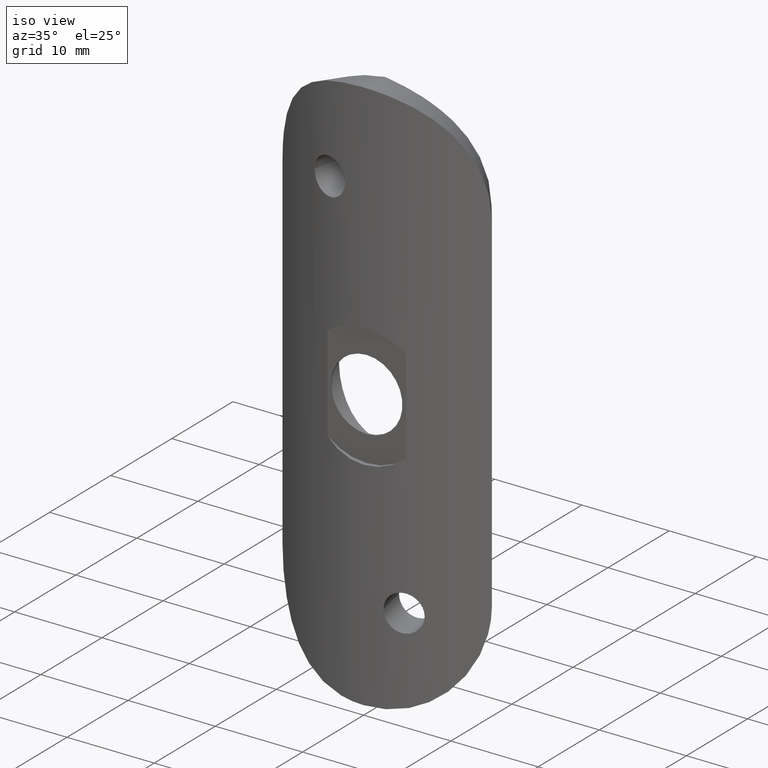
[diagram: clean part render]
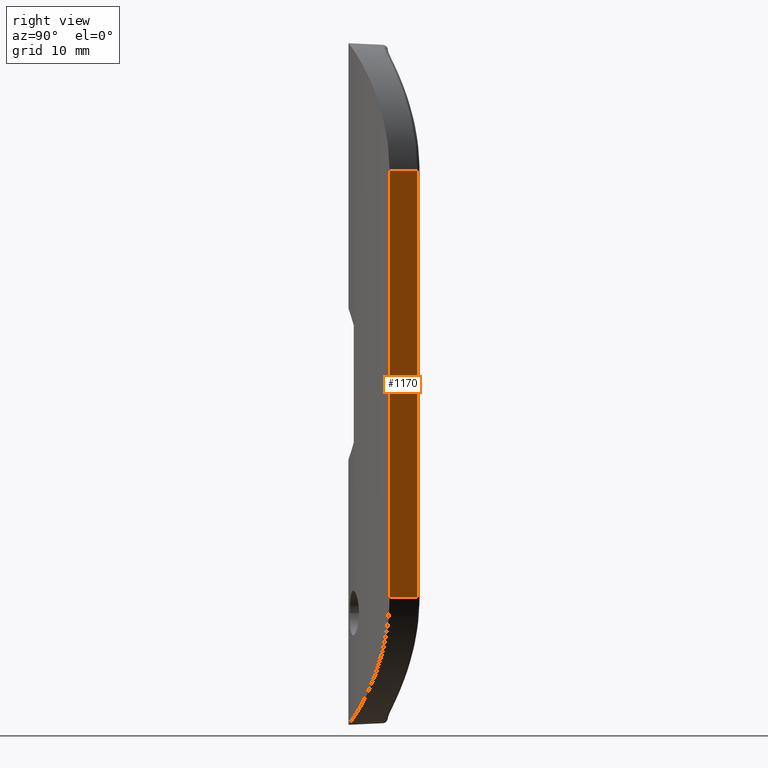
[diagram: tour spotlight — one face highlighted and labeled with its STEP entity id]
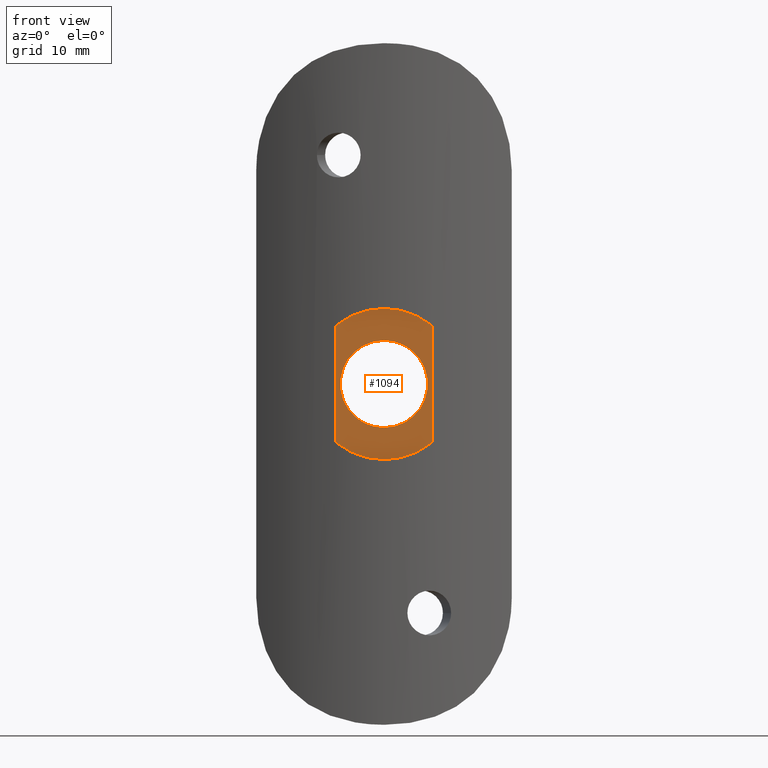
[diagram: tour spotlight — one face highlighted and labeled with its STEP entity id]
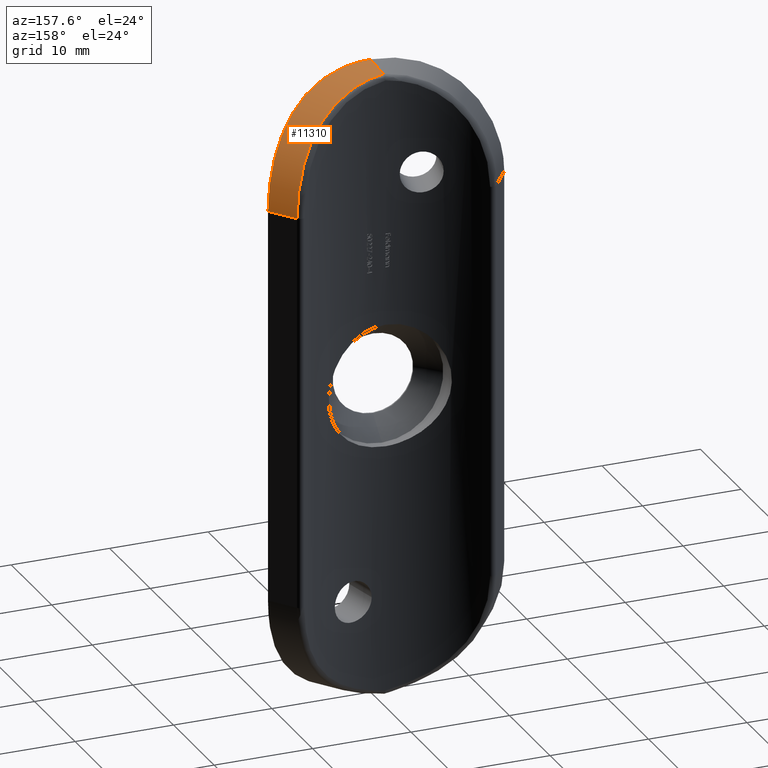
[diagram: tour spotlight — one face highlighted and labeled with its STEP entity id]
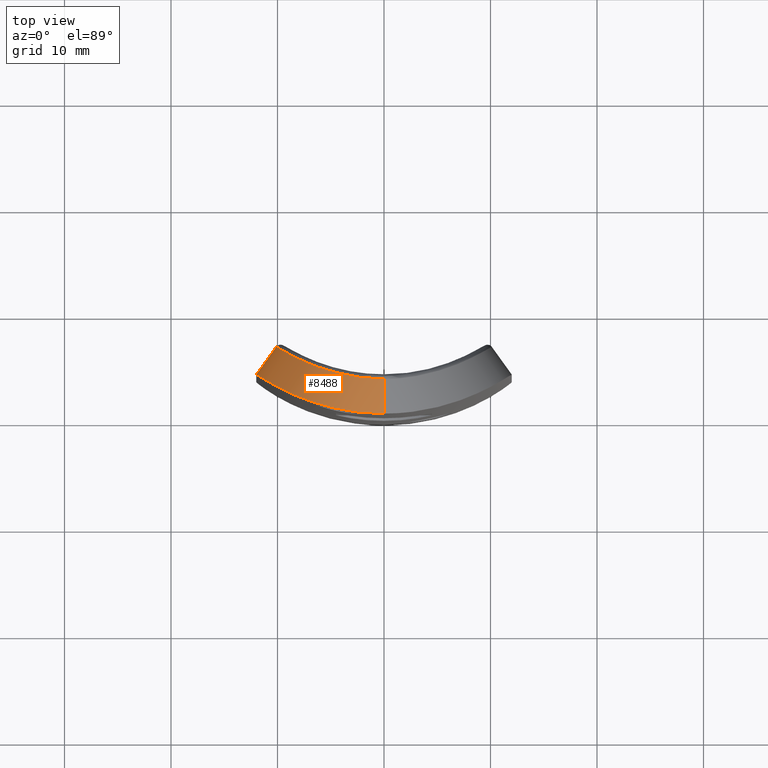
[diagram: tour spotlight — one face highlighted and labeled with its STEP entity id]
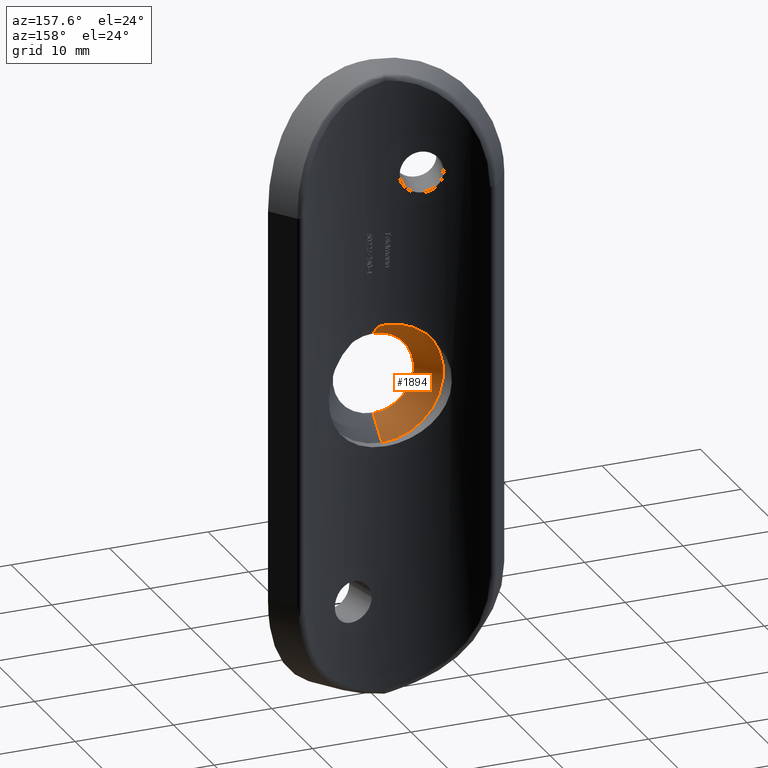
[diagram: tour spotlight — one face highlighted and labeled with its STEP entity id]
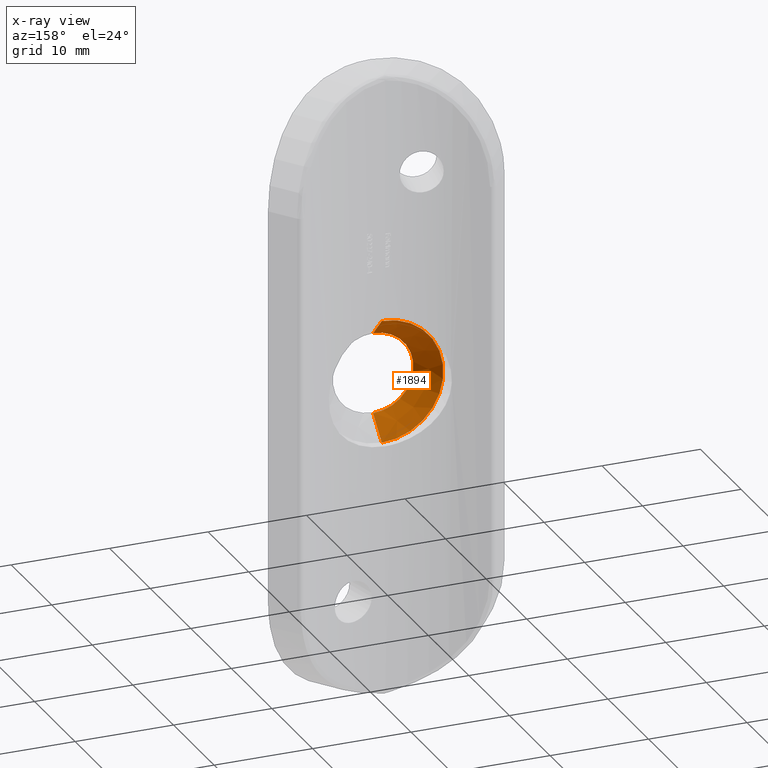
[diagram: x-ray of the same camera — body ghosted, this tour face saturated]
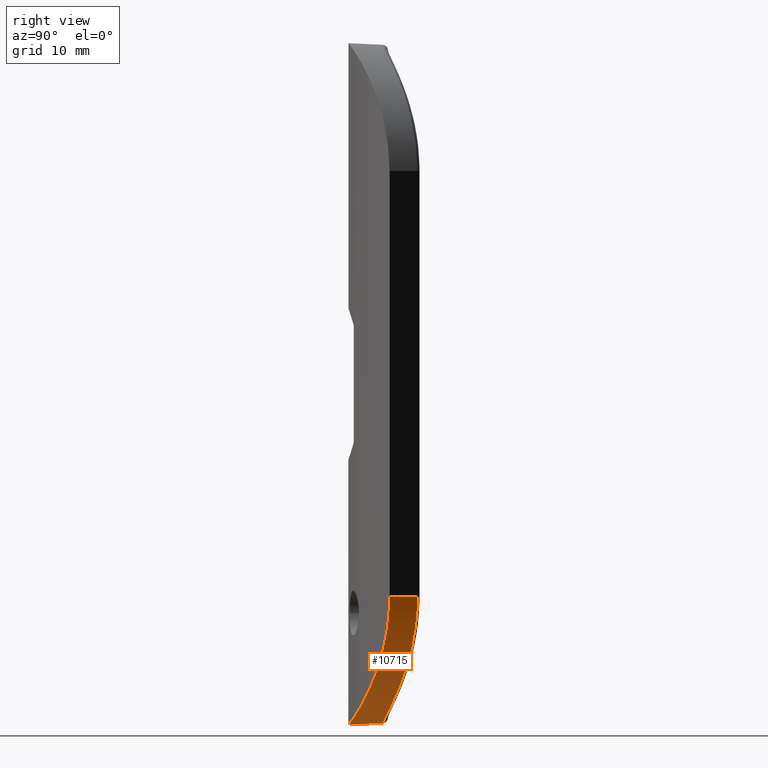
[diagram: tour spotlight — one face highlighted and labeled with its STEP entity id]
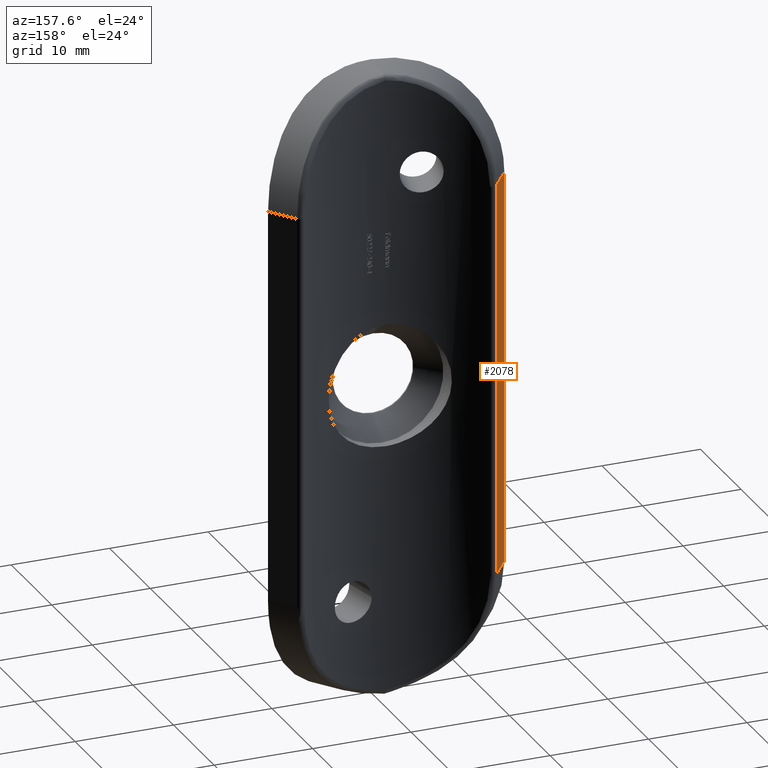
[diagram: tour spotlight — one face highlighted and labeled with its STEP entity id]
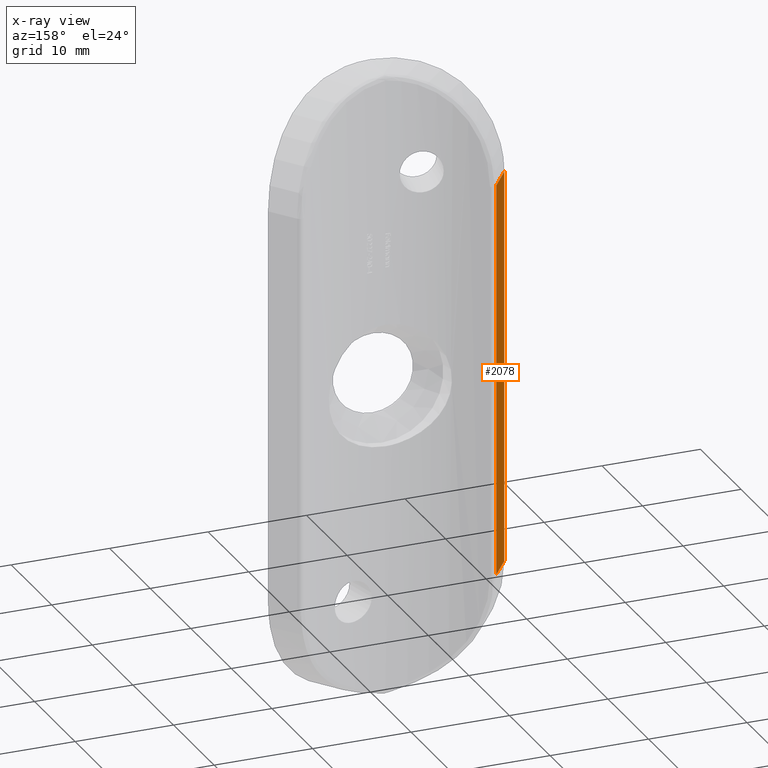
[diagram: x-ray of the same camera — body ghosted, this tour face saturated]
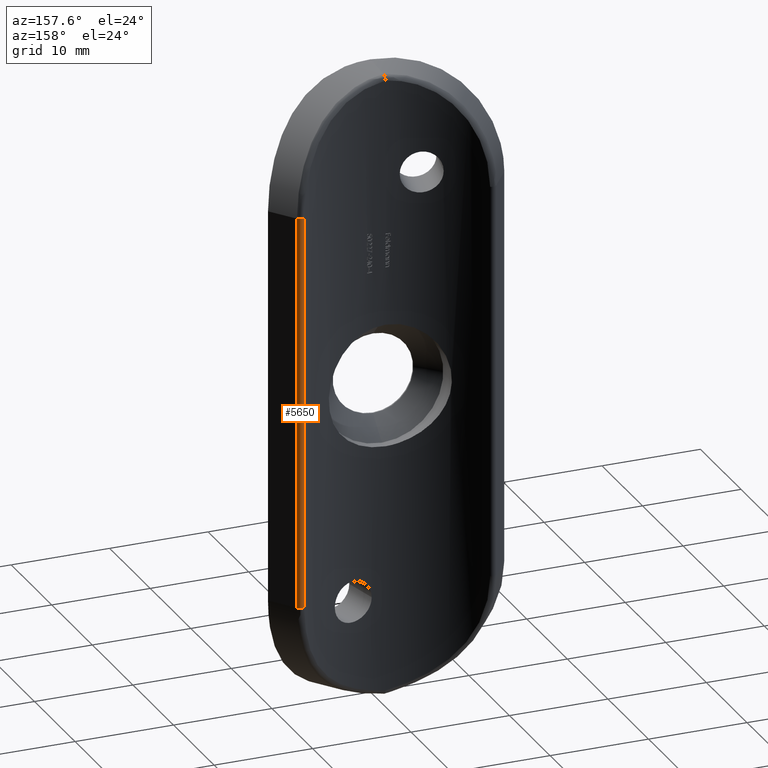
[diagram: tour spotlight — one face highlighted and labeled with its STEP entity id]
A machine part: a face-by-face anatomy tour. The part has 264 B-rep faces; the first image is the clean iso view, then the 8 largest visible faces are spotlighted one at a time (largest first), each with its STEP entity span.

Face 1 — right view, entity #1170. In plain terms, the highlighted planar face has unit normal (-0.8118, -0.5839, 0).
Definition (entity closure, byte-faithful):
#206 = VERTEX_POINT ( 'NONE', #2045 ) ;
#216 = CARTESIAN_POINT ( 'NONE',  ( 10.12717891536658854, 6.471195106964714228, 20.00000000000000000 ) ) ;
#436 = EDGE_CURVE ( 'NONE', #206, #4526, #10312, .T. ) ;
#1146 = ORIENTED_EDGE ( 'NONE', *, *, #6328, .T. ) ;
#1170 = ADVANCED_FACE ( 'NONE', ( #6364 ), #8756, .F. ) ;
#1869 = DIRECTION ( 'NONE',  ( -0.000000000000000000, -0.000000000000000000, -1.000000000000000000 ) ) ;
#2045 = CARTESIAN_POINT ( 'NONE',  ( 12.00000000000000000, 3.867599093655613718, 20.00000000000000000 ) ) ;
#3160 = VECTOR ( 'NONE', #11535, 1000.000000000000114 ) ;
#3526 = CARTESIAN_POINT ( 'NONE',  ( 9.839416058394155229, 6.871243052462144618, -20.00000000000000355 ) ) ;
#3542 = CARTESIAN_POINT ( 'NONE',  ( 10.12717891536659209, 6.471195106964712451, -20.00000000000000355 ) ) ;
#3570 = VECTOR ( 'NONE', #1869, 1000.000000000000000 ) ;
#3602 = EDGE_LOOP ( 'NONE', ( #1146, #5489, #6016, #10317 ) ) ;
#3622 = VECTOR ( 'NONE', #9531, 1000.000000000000114 ) ;
#3942 = LINE ( 'NONE', #4525, #3622 ) ;
#4525 = CARTESIAN_POINT ( 'NONE',  ( 11.99999999999999822, 3.867599093655615938, 20.00000000000000000 ) ) ;
#4526 = VERTEX_POINT ( 'NONE', #7653 ) ;
#5489 = ORIENTED_EDGE ( 'NONE', *, *, #8319, .T. ) ;
#6016 = ORIENTED_EDGE ( 'NONE', *, *, #9095, .T. ) ;
#6328 = EDGE_CURVE ( 'NONE', #4526, #11741, #9766, .T. ) ;
#6364 = FACE_OUTER_BOUND ( 'NONE', #3602, .T. ) ;
#6790 = DIRECTION ( 'NONE',  ( -0.8117956645423052287, -0.5839416058394171216, 0.000000000000000000 ) ) ;
#6877 = CARTESIAN_POINT ( 'NONE',  ( 12.00000000000000000, 3.867599093655613718, 32.00000000000000000 ) ) ;
#7653 = CARTESIAN_POINT ( 'NONE',  ( 12.00000000000000000, 3.867599093655613718, -20.00000000000000355 ) ) ;
#7666 = AXIS2_PLACEMENT_3D ( 'NONE', #8806, #6790, #8671 ) ;
#7739 = CARTESIAN_POINT ( 'NONE',  ( 10.12717891536659209, 6.471195106964712451, 32.00000000000000000 ) ) ;
#8167 = LINE ( 'NONE', #7739, #10688 ) ;
#8319 = EDGE_CURVE ( 'NONE', #11741, #9322, #8167, .T. ) ;
#8671 = DIRECTION ( 'NONE',  ( 0.5839416058394171216, -0.8117956645423052287, 0.000000000000000000 ) ) ;
#8756 = PLANE ( 'NONE',  #7666 ) ;
#8806 = CARTESIAN_POINT ( 'NONE',  ( 9.839416058394155229, 6.871243052462144618, 32.00000000000000000 ) ) ;
#9095 = EDGE_CURVE ( 'NONE', #9322, #206, #3942, .T. ) ;
#9322 = VERTEX_POINT ( 'NONE', #216 ) ;
#9531 = DIRECTION ( 'NONE',  ( 0.5839416058394170106, -0.8117956645423052287, -0.000000000000000000 ) ) ;
#9766 = LINE ( 'NONE', #3526, #3160 ) ;
#9776 = DIRECTION ( 'NONE',  ( -0.000000000000000000, -0.000000000000000000, 1.000000000000000000 ) ) ;
#10312 = LINE ( 'NONE', #6877, #3570 ) ;
#10317 = ORIENTED_EDGE ( 'NONE', *, *, #436, .T. ) ;
#10688 = VECTOR ( 'NONE', #9776, 1000.000000000000000 ) ;
#11535 = DIRECTION ( 'NONE',  ( -0.5839416058394170106, 0.8117956645423052287, 0.000000000000000000 ) ) ;
#11741 = VERTEX_POINT ( 'NONE', #3542 ) ;

Face 2 — front view, entity #1094. In plain terms, the highlighted planar face has unit normal (0, 1, 0).
Definition (entity closure, byte-faithful):
#55 = VERTEX_POINT ( 'NONE', #4670 ) ;
#395 = ORIENTED_EDGE ( 'NONE', *, *, #2696, .T. ) ;
#484 = CIRCLE ( 'NONE', #4409, 7.099999999999997868 ) ;
#645 = DIRECTION ( 'NONE',  ( 0.000000000000000000, 1.000000000000000000, 0.000000000000000000 ) ) ;
#1094 = ADVANCED_FACE ( 'NONE', ( #9837, #10913 ), #1567, .F. ) ;
#1444 = DIRECTION ( 'NONE',  ( 0.000000000000000000, -0.000000000000000000, 1.000000000000000000 ) ) ;
#1476 = EDGE_CURVE ( 'NONE', #11277, #55, #2429, .T. ) ;
#1559 = ORIENTED_EDGE ( 'NONE', *, *, #1476, .F. ) ;
#1567 = PLANE ( 'NONE',  #2289 ) ;
#1840 = DIRECTION ( 'NONE',  ( 0.000000000000000000, 0.000000000000000000, -1.000000000000000000 ) ) ;
#2289 = AXIS2_PLACEMENT_3D ( 'NONE', #12582, #645, #1444 ) ;
#2308 = DIRECTION ( 'NONE',  ( 0.000000000000000000, 0.000000000000000000, -1.000000000000000000 ) ) ;
#2354 = LINE ( 'NONE', #5694, #10054 ) ;
#2429 = LINE ( 'NONE', #6985, #3224 ) ;
#2554 = AXIS2_PLACEMENT_3D ( 'NONE', #11927, #4837, #1840 ) ;
#2623 = ORIENTED_EDGE ( 'NONE', *, *, #10505, .F. ) ;
#2696 = EDGE_CURVE ( 'NONE', #4862, #55, #3532, .T. ) ;
#2796 = VERTEX_POINT ( 'NONE', #10721 ) ;
#2890 = AXIS2_PLACEMENT_3D ( 'NONE', #3806, #11813, #5812 ) ;
#3224 = VECTOR ( 'NONE', #7919, 1000.000000000000000 ) ;
#3236 = CARTESIAN_POINT ( 'NONE',  ( 0.000000000000000000, 0.5000000000000004441, -7.099999999999997868 ) ) ;
#3532 = CIRCLE ( 'NONE', #2890, 7.099999999999997868 ) ;
#3806 = CARTESIAN_POINT ( 'NONE',  ( 0.000000000000000000, 0.5000000000000004441, 0.000000000000000000 ) ) ;
#3899 = CARTESIAN_POINT ( 'NONE',  ( -4.505552130427524560, 0.5000000000000004441, 5.487257967327575869 ) ) ;
#4213 = EDGE_CURVE ( 'NONE', #11277, #7183, #8679, .T. ) ;
#4409 = AXIS2_PLACEMENT_3D ( 'NONE', #8500, #6319, #2308 ) ;
#4507 = EDGE_LOOP ( 'NONE', ( #10905, #5325, #8429, #395, #1559 ) ) ;
#4670 = CARTESIAN_POINT ( 'NONE',  ( 4.505552130427524560, 0.5000000000000004441, -5.487257967327575869 ) ) ;
#4837 = DIRECTION ( 'NONE',  ( -0.000000000000000000, -1.000000000000000000, -0.000000000000000000 ) ) ;
#4862 = VERTEX_POINT ( 'NONE', #3236 ) ;
#4921 = CARTESIAN_POINT ( 'NONE',  ( 4.505552130427524560, 0.5000000000000004441, 5.487257967327575869 ) ) ;
#5058 = VERTEX_POINT ( 'NONE', #12654 ) ;
#5325 = ORIENTED_EDGE ( 'NONE', *, *, #12447, .F. ) ;
#5694 = CARTESIAN_POINT ( 'NONE',  ( -4.505552130427524560, 0.5000000000000004441, 32.00000000000000000 ) ) ;
#5812 = DIRECTION ( 'NONE',  ( 0.000000000000000000, 0.000000000000000000, -1.000000000000000000 ) ) ;
#6319 = DIRECTION ( 'NONE',  ( -0.000000000000000000, -1.000000000000000000, -0.000000000000000000 ) ) ;
#6880 = CARTESIAN_POINT ( 'NONE',  ( 0.000000000000000000, 0.5000000000000004441, 0.000000000000000000 ) ) ;
#6985 = CARTESIAN_POINT ( 'NONE',  ( 4.505552130427524560, 0.5000000000000004441, 32.00000000000000000 ) ) ;
#7183 = VERTEX_POINT ( 'NONE', #3899 ) ;
#7712 = CARTESIAN_POINT ( 'NONE',  ( 5.021051876504147385E-16, 0.5000000000000004441, 4.099999999999999645 ) ) ;
#7919 = DIRECTION ( 'NONE',  ( -0.000000000000000000, -0.000000000000000000, -1.000000000000000000 ) ) ;
#8015 = ORIENTED_EDGE ( 'NONE', *, *, #9863, .F. ) ;
#8162 = AXIS2_PLACEMENT_3D ( 'NONE', #6880, #11833, #9742 ) ;
#8247 = AXIS2_PLACEMENT_3D ( 'NONE', #10241, #8269, #9273 ) ;
#8269 = DIRECTION ( 'NONE',  ( -0.000000000000000000, -1.000000000000000000, -0.000000000000000000 ) ) ;
#8429 = ORIENTED_EDGE ( 'NONE', *, *, #12349, .T. ) ;
#8500 = CARTESIAN_POINT ( 'NONE',  ( 0.000000000000000000, 0.5000000000000004441, 0.000000000000000000 ) ) ;
#8679 = CIRCLE ( 'NONE', #2554, 7.099999999999997868 ) ;
#8910 = EDGE_LOOP ( 'NONE', ( #2623, #8015 ) ) ;
#9165 = VERTEX_POINT ( 'NONE', #7712 ) ;
#9273 = DIRECTION ( 'NONE',  ( 0.000000000000000000, 0.000000000000000000, -1.000000000000000000 ) ) ;
#9742 = DIRECTION ( 'NONE',  ( 0.000000000000000000, 0.000000000000000000, -1.000000000000000000 ) ) ;
#9837 = FACE_BOUND ( 'NONE', #8910, .T. ) ;
#9863 = EDGE_CURVE ( 'NONE', #9165, #2796, #10667, .T. ) ;
#10054 = VECTOR ( 'NONE', #12579, 1000.000000000000000 ) ;
#10241 = CARTESIAN_POINT ( 'NONE',  ( 0.000000000000000000, 0.5000000000000004441, 0.000000000000000000 ) ) ;
#10505 = EDGE_CURVE ( 'NONE', #2796, #9165, #11796, .T. ) ;
#10667 = CIRCLE ( 'NONE', #8247, 4.099999999999999645 ) ;
#10721 = CARTESIAN_POINT ( 'NONE',  ( 0.000000000000000000, 0.5000000000000004441, -4.099999999999999645 ) ) ;
#10905 = ORIENTED_EDGE ( 'NONE', *, *, #4213, .T. ) ;
#10913 = FACE_OUTER_BOUND ( 'NONE', #4507, .T. ) ;
#11277 = VERTEX_POINT ( 'NONE', #4921 ) ;
#11796 = CIRCLE ( 'NONE', #8162, 4.099999999999999645 ) ;
#11813 = DIRECTION ( 'NONE',  ( -0.000000000000000000, -1.000000000000000000, -0.000000000000000000 ) ) ;
#11833 = DIRECTION ( 'NONE',  ( -0.000000000000000000, -1.000000000000000000, -0.000000000000000000 ) ) ;
#11927 = CARTESIAN_POINT ( 'NONE',  ( 0.000000000000000000, 0.5000000000000004441, 0.000000000000000000 ) ) ;
#12349 = EDGE_CURVE ( 'NONE', #5058, #4862, #484, .T. ) ;
#12447 = EDGE_CURVE ( 'NONE', #5058, #7183, #2354, .T. ) ;
#12579 = DIRECTION ( 'NONE',  ( 0.000000000000000000, 0.000000000000000000, 1.000000000000000000 ) ) ;
#12582 = CARTESIAN_POINT ( 'NONE',  ( 0.000000000000000000, 0.5000000000000000000, -4.099999999999999645 ) ) ;
#12654 = CARTESIAN_POINT ( 'NONE',  ( -4.505552130427524560, 0.5000000000000004441, -5.487257967327576758 ) ) ;

Face 3 — auxiliary view, entity #11310. In plain terms, the highlighted cylindrical surface (partial cylindrical patch) has radius 12 mm, axis along (0.5839, -0.8118, 0).
Definition (entity closure, byte-faithful):
#50 = CARTESIAN_POINT ( 'NONE',  ( 9.572176795097250945, 6.108296295516240981, 23.94905101762006083 ) ) ;
#92 = CARTESIAN_POINT ( 'NONE',  ( 9.236289791145132710, 5.900570151001626407, 24.97770794052638976 ) ) ;
#93 = CARTESIAN_POINT ( 'NONE',  ( 12.00000000000000000, 3.867599093655612830, 20.82532465503840413 ) ) ;
#136 = CARTESIAN_POINT ( 'NONE',  ( -9.741547974507684060, 13.54270072992697749, 20.00000000000000000 ) ) ;
#157 = ORIENTED_EDGE ( 'NONE', *, *, #9095, .F. ) ;
#206 = VERTEX_POINT ( 'NONE', #2045 ) ;
#216 = CARTESIAN_POINT ( 'NONE',  ( 10.12717891536658854, 6.471195106964714228, 20.00000000000000000 ) ) ;
#315 = CARTESIAN_POINT ( 'NONE',  ( 7.565155939109336813, 1.440374234520338748, 29.76760648692991396 ) ) ;
#398 = CARTESIAN_POINT ( 'NONE',  ( 5.536237308077762265, 0.7447776640479754073, 30.96738982605044299 ) ) ;
#731 = B_SPLINE_CURVE_WITH_KNOTS ( 'NONE', 3,
 ( #4179, #93, #5175, #7357, #12456, #7399, #6276, #12328, #4398, #1404, #10441, #11438, #5308, #4311, #6397, #315, #2400, #3257, #398, #8424, #11257, #8254, #5269, #8293, #11396, #2312 ),
 .UNSPECIFIED., .F., .F.,
 ( 4, 2, 2, 2, 2, 2, 2, 2, 2, 2, 2, 2, 4 ),
 ( 0.000000000000000000, 0.002441037165012326787, 0.003661555747518484977, 0.004882074330024644034, 0.007323111495036960412, 0.008543630077543121204, 0.009764148660049279393, 0.01098466724255543932, 0.01220518582506159404, 0.01464622299007390174, 0.01586674157258005646, 0.01708726015508621118, 0.01952829732009852409 ),
 .UNSPECIFIED. ) ;
#1025 = EDGE_CURVE ( 'NONE', #206, #8933, #731, .T. ) ;
#1045 = CARTESIAN_POINT ( 'NONE',  ( 6.998838513618312440, 4.749969719537173063, 28.54597954356985667 ) ) ;
#1089 = CARTESIAN_POINT ( 'NONE',  ( 8.276384315391476676, 5.363297702628000430, 26.86292557208184917 ) ) ;
#1184 = CARTESIAN_POINT ( 'NONE',  ( 9.670500822432888555, 6.170714829862242290, 23.59779996299899452 ) ) ;
#1226 = DIRECTION ( 'NONE',  ( 0.5839416058394170106, -0.8117956645423051176, 0.000000000000000000 ) ) ;
#1404 = CARTESIAN_POINT ( 'NONE',  ( 9.955326618855732335, 2.570852261898295410, 27.23425730716095572 ) ) ;
#1531 = VERTEX_POINT ( 'NONE', #3983 ) ;
#2045 = CARTESIAN_POINT ( 'NONE',  ( 12.00000000000000000, 3.867599093655613718, 20.00000000000000000 ) ) ;
#2093 = CARTESIAN_POINT ( 'NONE',  ( 7.670246256790045791, 5.059910319933140777, 27.73525308564031988 ) ) ;
#2312 = CARTESIAN_POINT ( 'NONE',  ( -9.117266696107152617E-15, 0.000000000000000000, 32.00000000000000000 ) ) ;
#2400 = CARTESIAN_POINT ( 'NONE',  ( 7.245185304457206321, 1.316302063506890718, 29.99670429303103347 ) ) ;
#3112 = CARTESIAN_POINT ( 'NONE',  ( 4.786837390412624238, 3.962737914211535539, 30.28040607774899229 ) ) ;
#3207 = DIRECTION ( 'NONE',  ( 0.8117956645423051176, 0.5839416058394172326, 0.000000000000000000 ) ) ;
#3257 = CARTESIAN_POINT ( 'NONE',  ( 6.244935086374507449, 0.9590666021320810586, 30.62764866027265143 ) ) ;
#3622 = VECTOR ( 'NONE', #9531, 1000.000000000000114 ) ;
#3730 = EDGE_LOOP ( 'NONE', ( #157, #7316, #9481, #4621 ) ) ;
#3929 = CARTESIAN_POINT ( 'NONE',  ( -6.838016446903935200E-15, 2.172125592317102338, 31.94967150208802309 ) ) ;
#3942 = LINE ( 'NONE', #4525, #3622 ) ;
#3983 = CARTESIAN_POINT ( 'NONE',  ( -7.645952399552847496E-15, 3.246240496244443108, 31.84933095981319795 ) ) ;
#4086 = CARTESIAN_POINT ( 'NONE',  ( 5.389221191223329654, 4.147455033844807737, 29.89592279680632814 ) ) ;
#4128 = CARTESIAN_POINT ( 'NONE',  ( 5.677826046268694249, 4.244325353752462782, 29.68976629026787606 ) ) ;
#4179 = CARTESIAN_POINT ( 'NONE',  ( 12.00000000000000000, 3.867599093655613718, 20.00000000000000000 ) ) ;
#4222 = CARTESIAN_POINT ( 'NONE',  ( 10.07148329003814524, 6.433007344359092272, 21.46472306259698470 ) ) ;
#4311 = CARTESIAN_POINT ( 'NONE',  ( 8.454984399070681889, 1.817544348643117536, 29.01973767204460231 ) ) ;
#4393 = AXIS2_PLACEMENT_3D ( 'NONE', #136, #1226, #3207 ) ;
#4398 = CARTESIAN_POINT ( 'NONE',  ( 10.57120301057235956, 2.921180050394565075, 26.23181291921781622 ) ) ;
#4432 = CYLINDRICAL_SURFACE ( 'NONE', #4393, 12.00000000000000178 ) ;
#4525 = CARTESIAN_POINT ( 'NONE',  ( 11.99999999999999822, 3.867599093655615938, 20.00000000000000000 ) ) ;
#4621 = ORIENTED_EDGE ( 'NONE', *, *, #1025, .F. ) ;
#5040 = CARTESIAN_POINT ( 'NONE',  ( 8.457785709454658019, 5.459738984517018778, 26.56093233363199957 ) ) ;
#5173 = CARTESIAN_POINT ( 'NONE',  ( 10.12717891536658854, 6.471195106964714228, 20.00000000000000000 ) ) ;
#5175 = CARTESIAN_POINT ( 'NONE',  ( 11.93189946652243449, 3.818008342000464683, 21.63634898292986719 ) ) ;
#5269 = CARTESIAN_POINT ( 'NONE',  ( 2.839675941182904673, 0.1931468925307959772, 31.75932234247533259 ) ) ;
#5308 = CARTESIAN_POINT ( 'NONE',  ( 8.995662457020596747, 2.071100874837505934, 28.46802102427642112 ) ) ;
#5538 = B_SPLINE_CURVE_WITH_KNOTS ( 'NONE', 3,
 ( #5173, #9068, #4222, #6092, #12180, #1184, #50, #92, #7090, #5040, #1089, #8207, #2093, #1045, #11219, #4128, #4086, #3112, #12047, #12226, #9121, #9253, #10140, #6052, #7046, #11124 ),
 .UNSPECIFIED., .F., .F.,
 ( 4, 2, 2, 2, 2, 2, 2, 2, 2, 2, 2, 2, 4 ),
 ( 0.000000000000000000, 0.002183140656762440953, 0.003274710985143656442, 0.004366281313524871498, 0.006549421970287312884, 0.007640992298668537915, 0.008732562627049762077, 0.01091570328381222255, 0.01200727361219344758, 0.01309884394057467261, 0.01528198459733712787, 0.01637355492571835464, 0.01746512525409957967 ),
 .UNSPECIFIED. ) ;
#6052 = CARTESIAN_POINT ( 'NONE',  ( 0.7289297493280589846, 3.269291098129510686, 31.74079200779239684 ) ) ;
#6092 = CARTESIAN_POINT ( 'NONE',  ( 9.906032413744748411, 6.323334164646677635, 22.53821986203080741 ) ) ;
#6276 = CARTESIAN_POINT ( 'NONE',  ( 11.31885359670267910, 3.397375670358060873, 24.39806094091035860 ) ) ;
#6397 = CARTESIAN_POINT ( 'NONE',  ( 8.169198336596604548, 1.690689837189890632, 29.27964985723644276 ) ) ;
#7046 = CARTESIAN_POINT ( 'NONE',  ( 0.3660558530732861415, 3.252240755034904840, 31.80123139863307813 ) ) ;
#7090 = CARTESIAN_POINT ( 'NONE',  ( 8.959022801026884864, 5.735262522138841135, 25.63046673744610615 ) ) ;
#7233 = CARTESIAN_POINT ( 'NONE',  ( -9.117266696107152617E-15, 0.000000000000000000, 32.00000000000000000 ) ) ;
#7316 = ORIENTED_EDGE ( 'NONE', *, *, #11348, .T. ) ;
#7357 = CARTESIAN_POINT ( 'NONE',  ( 11.72907469377582679, 3.675814856459924673, 22.83227826673835636 ) ) ;
#7399 = CARTESIAN_POINT ( 'NONE',  ( 11.43944363209317139, 3.477888637730434773, 24.01070385012516439 ) ) ;
#8207 = CARTESIAN_POINT ( 'NONE',  ( 7.882756202702052128, 5.163412005056858156, 27.45012701642542297 ) ) ;
#8254 = CARTESIAN_POINT ( 'NONE',  ( 3.237124911212127198, 0.2526143562426108602, 31.68063621403025110 ) ) ;
#8293 = CARTESIAN_POINT ( 'NONE',  ( 1.638044330538452442, 0.04950677834220664625, 31.94437176565915948 ) ) ;
#8424 = CARTESIAN_POINT ( 'NONE',  ( 4.411722216362562676, 0.4754446895425761266, 31.36894475695905982 ) ) ;
#8933 = VERTEX_POINT ( 'NONE', #7233 ) ;
#8957 = CARTESIAN_POINT ( 'NONE',  ( -7.645952399552847496E-15, 3.246240496244443108, 31.84933095981319795 ) ) ;
#8966 =( BOUNDED_CURVE ( )  B_SPLINE_CURVE ( 3, ( #9639, #11757, #3929, #8957 ),
 .UNSPECIFIED., .F., .F. ) 
 B_SPLINE_CURVE_WITH_KNOTS ( ( 4, 4 ),
 ( 4.712388980384689674, 4.871021361493728108 ),
 .UNSPECIFIED. ) 
 CURVE ( )  GEOMETRIC_REPRESENTATION_ITEM ( )  RATIONAL_B_SPLINE_CURVE ( ( 1.000000000000000000, 0.9979040797806755236, 0.9979040797806755236, 1.000000000000000000 ) ) 
 REPRESENTATION_ITEM ( '' )  );
#9068 = CARTESIAN_POINT ( 'NONE',  ( 10.12717891536658854, 6.471195106964714228, 20.73807937200532336 ) ) ;
#9095 = EDGE_CURVE ( 'NONE', #9322, #206, #3942, .T. ) ;
#9121 = CARTESIAN_POINT ( 'NONE',  ( 2.855553897046666734, 3.505190841350648956, 31.19724926842518542 ) ) ;
#9253 = CARTESIAN_POINT ( 'NONE',  ( 1.805319957109083884, 3.362487134309513515, 31.50432257375954137 ) ) ;
#9322 = VERTEX_POINT ( 'NONE', #216 ) ;
#9481 = ORIENTED_EDGE ( 'NONE', *, *, #12005, .F. ) ;
#9531 = DIRECTION ( 'NONE',  ( 0.5839416058394170106, -0.8117956645423052287, -0.000000000000000000 ) ) ;
#9639 = CARTESIAN_POINT ( 'NONE',  ( -9.117266696107152617E-15, 0.000000000000000000, 32.00000000000000000 ) ) ;
#10140 = CARTESIAN_POINT ( 'NONE',  ( 1.447866623082514570, 3.324309759526063335, 31.59255130478875984 ) ) ;
#10441 = CARTESIAN_POINT ( 'NONE',  ( 9.730212641888689618, 2.447553399588561440, 27.55987949649086488 ) ) ;
#10694 = FACE_OUTER_BOUND ( 'NONE', #3730, .T. ) ;
#11124 = CARTESIAN_POINT ( 'NONE',  ( -7.645952399552847496E-15, 3.246240496244443108, 31.84933095981319795 ) ) ;
#11219 = CARTESIAN_POINT ( 'NONE',  ( 6.501984363770556108, 4.541767708968576400, 29.03411875496052730 ) ) ;
#11257 = CARTESIAN_POINT ( 'NONE',  ( 4.025376523089078340, 0.3941277660935256777, 31.48497128318694749 ) ) ;
#11310 = ADVANCED_FACE ( 'NONE', ( #10694 ), #4432, .T. ) ;
#11348 = EDGE_CURVE ( 'NONE', #9322, #1531, #5538, .T. ) ;
#11396 = CARTESIAN_POINT ( 'NONE',  ( 0.8246185387076750972, -2.320870275476768138E-16, 31.99999999999999289 ) ) ;
#11438 = CARTESIAN_POINT ( 'NONE',  ( 9.250554041662466531, 2.197810460345600791, 28.17621965723953181 ) ) ;
#11757 = CARTESIAN_POINT ( 'NONE',  ( -6.022379613298613912E-15, 1.087772709770875812, 32.00000000000000000 ) ) ;
#12005 = EDGE_CURVE ( 'NONE', #8933, #1531, #8966, .T. ) ;
#12047 = CARTESIAN_POINT ( 'NONE',  ( 4.477211699115454024, 3.876148234274339632, 30.45618376487040990 ) ) ;
#12180 = CARTESIAN_POINT ( 'NONE',  ( 9.837107706626525783, 6.278035596462827606, 22.89328904128677422 ) ) ;
#12226 = CARTESIAN_POINT ( 'NONE',  ( 3.523794955830233722, 3.637066460458416195, 30.93751904557932519 ) ) ;
#12328 = CARTESIAN_POINT ( 'NONE',  ( 10.90936914002777769, 3.131790059932551440, 25.52261610347974496 ) ) ;
#12456 = CARTESIAN_POINT ( 'NONE',  ( 11.64450510354858359, 3.617092456668828504, 23.22745913984867627 ) ) ;

Face 4 — top view, entity #8488. In plain terms, the highlighted cylindrical surface (partial cylindrical patch) has radius 12 mm, axis along (0.5839, 0.8118, -0).
Definition (entity closure, byte-faithful):
#17 = CARTESIAN_POINT ( 'NONE',  ( -10.12717891536658854, 6.471195106964713339, 20.73807937200530915 ) ) ;
#360 = CARTESIAN_POINT ( 'NONE',  ( -11.64480806118127632, 3.617302323465929170, 23.22607689744122439 ) ) ;
#377 = CARTESIAN_POINT ( 'NONE',  ( -6.998838513618322210, 4.749969719537173951, 28.54597954356985312 ) ) ;
#402 = CARTESIAN_POINT ( 'NONE',  ( -4.019515070331801887, 0.3929784181706611479, 31.48658961672468592 ) ) ;
#441 = CARTESIAN_POINT ( 'NONE',  ( -7.556449153321901591, 1.436897327260850732, 29.77418816922519795 ) ) ;
#529 = EDGE_CURVE ( 'NONE', #6330, #2103, #12506, .T. ) ;
#556 = B_SPLINE_CURVE_WITH_KNOTS ( 'NONE', 3,
 ( #5312, #4446, #5361, #3434, #11446, #402, #10444, #5441, #10409, #10316, #441, #3351, #8470, #10481, #4486, #12371, #5485, #6401, #7492, #9307, #6329, #360, #2447, #7362, #1366, #4404 ),
 .UNSPECIFIED., .F., .F.,
 ( 4, 2, 2, 2, 2, 2, 2, 2, 2, 2, 2, 2, 4 ),
 ( 1.143113421885059593E-17, 0.002442704272823939624, 0.003664056409235903582, 0.004885408545647868840, 0.007328112818471794153, 0.008549464954883760279, 0.009770817091295727272, 0.01099216922770769427, 0.01221352136411965952, 0.01465622563694359871, 0.01587757777335556744, 0.01709892990976753444, 0.01954163418259147189 ),
 .UNSPECIFIED. ) ;
#638 = CYLINDRICAL_SURFACE ( 'NONE', #5624, 12.00000000000000178 ) ;
#1017 = DIRECTION ( 'NONE',  ( -0.8117956645423061168, 0.5839416058394159004, 0.000000000000000000 ) ) ;
#1345 = CARTESIAN_POINT ( 'NONE',  ( -3.523794955830248377, 3.637066460458415751, 30.93751904557931098 ) ) ;
#1366 = CARTESIAN_POINT ( 'NONE',  ( -12.00000000000000000, 3.867599093655615050, 20.82542637679248543 ) ) ;
#1503 = CARTESIAN_POINT ( 'NONE',  ( -4.477211699115466459, 3.876148234274339188, 30.45618376487040990 ) ) ;
#1531 = VERTEX_POINT ( 'NONE', #3983 ) ;
#2103 = VERTEX_POINT ( 'NONE', #2750 ) ;
#2143 = CARTESIAN_POINT ( 'NONE',  ( -10.12717891536659387, 6.471195106964717780, 20.00000000000000000 ) ) ;
#2335 = CARTESIAN_POINT ( 'NONE',  ( -7.670246256790055561, 5.059910319933142553, 27.73525308564032343 ) ) ;
#2447 = CARTESIAN_POINT ( 'NONE',  ( -11.72926870889600615, 3.675950132417820981, 22.83126104549899793 ) ) ;
#2462 = CARTESIAN_POINT ( 'NONE',  ( -7.645952399552847496E-15, 3.246240496244443108, 31.84933095981319795 ) ) ;
#2504 = FACE_OUTER_BOUND ( 'NONE', #8838, .T. ) ;
#2750 = CARTESIAN_POINT ( 'NONE',  ( -10.12717891536659387, 6.471195106964717780, 20.00000000000000000 ) ) ;
#3123 = EDGE_CURVE ( 'NONE', #1531, #2103, #5776, .T. ) ;
#3351 = CARTESIAN_POINT ( 'NONE',  ( -8.164066724082507776, 1.688435056704962411, 29.28423691125915340 ) ) ;
#3370 = CARTESIAN_POINT ( 'NONE',  ( -8.276384315391480229, 5.363297702628003982, 26.86292557208185627 ) ) ;
#3434 = CARTESIAN_POINT ( 'NONE',  ( -2.836642390231776112, 0.1927378290949691986, 31.75985753279653068 ) ) ;
#3451 = CARTESIAN_POINT ( 'NONE',  ( -0.3660558530732994087, 3.252240755034910169, 31.80123139863308523 ) ) ;
#3540 = CARTESIAN_POINT ( 'NONE',  ( -6.501984363770561437, 4.541767708968579953, 29.03411875496051664 ) ) ;
#3929 = CARTESIAN_POINT ( 'NONE',  ( -6.838016446903935200E-15, 2.172125592317102338, 31.94967150208802309 ) ) ;
#3936 = CARTESIAN_POINT ( 'NONE',  ( 9.741547974507668073, 13.54270072992701479, 20.00000000000000000 ) ) ;
#3983 = CARTESIAN_POINT ( 'NONE',  ( -7.645952399552847496E-15, 3.246240496244443108, 31.84933095981319795 ) ) ;
#4404 = CARTESIAN_POINT ( 'NONE',  ( -12.00000000000000000, 3.867599093655613718, 20.00000000000000000 ) ) ;
#4446 = CARTESIAN_POINT ( 'NONE',  ( -0.8244347916045254854, 6.324512672832084957E-17, 32.00000000000000000 ) ) ;
#4486 = CARTESIAN_POINT ( 'NONE',  ( -9.248077892315398785, 2.196565208356638266, 28.17913971635068293 ) ) ;
#4640 = VECTOR ( 'NONE', #5071, 1000.000000000000114 ) ;
#4848 = CARTESIAN_POINT ( 'NONE',  ( -9.906032413744753740, 6.323334164646680300, 22.53821986203081451 ) ) ;
#5071 = DIRECTION ( 'NONE',  ( 0.5839416058394157893, 0.8117956645423061168, -0.000000000000000000 ) ) ;
#5155 = CARTESIAN_POINT ( 'NONE',  ( -9.839416058394160558, 6.871243052462147283, 20.00000000000000000 ) ) ;
#5312 = CARTESIAN_POINT ( 'NONE',  ( -9.117266696107152617E-15, 0.000000000000000000, 32.00000000000000000 ) ) ;
#5361 = CARTESIAN_POINT ( 'NONE',  ( -1.637081255389283729, 0.04948494443770538875, 31.94438342167033795 ) ) ;
#5377 = CARTESIAN_POINT ( 'NONE',  ( -8.457785709454670453, 5.459738984517022331, 26.56093233363199957 ) ) ;
#5441 = CARTESIAN_POINT ( 'NONE',  ( -5.532917837906419223, 0.7438366506647378085, 30.96886078951179400 ) ) ;
#5485 = CARTESIAN_POINT ( 'NONE',  ( -9.952719643953839679, 2.569399929939177873, 27.23823856945869437 ) ) ;
#5502 = CARTESIAN_POINT ( 'NONE',  ( -5.389221191223335872, 4.147455033844809513, 29.89592279680631393 ) ) ;
#5624 = AXIS2_PLACEMENT_3D ( 'NONE', #3936, #8917, #1017 ) ;
#5776 = B_SPLINE_CURVE_WITH_KNOTS ( 'NONE', 3,
 ( #2462, #3451, #11465, #12437, #6463, #11543, #1345, #1503, #8371, #5502, #9550, #3540, #377, #2335, #9369, #3370, #5377, #12388, #6381, #7381, #10888, #9972, #4848, #6862, #17, #2143 ),
 .UNSPECIFIED., .F., .F.,
 ( 4, 2, 2, 2, 2, 2, 2, 2, 2, 2, 2, 2, 4 ),
 ( 6.720386226758006326E-19, 0.001104099780465673088, 0.002208199560931345742, 0.004416399121862693219, 0.005520498902328365223, 0.006624598682794038094, 0.008832798243725374296, 0.009936898024191037626, 0.01104099780465670443, 0.01324919736558804496, 0.01435329714605371176, 0.01545739692651938203, 0.01766559648745071043 ),
 .UNSPECIFIED. ) ;
#5913 = ORIENTED_EDGE ( 'NONE', *, *, #12005, .T. ) ;
#6329 = CARTESIAN_POINT ( 'NONE',  ( -11.44009522695896663, 3.478326778409639441, 24.00843907464543037 ) ) ;
#6330 = VERTEX_POINT ( 'NONE', #12549 ) ;
#6381 = CARTESIAN_POINT ( 'NONE',  ( -9.236289791145132710, 5.900570151001625518, 24.97770794052638621 ) ) ;
#6401 = CARTESIAN_POINT ( 'NONE',  ( -10.57043074677839911, 2.920680030414520179, 26.23359019163507710 ) ) ;
#6463 = CARTESIAN_POINT ( 'NONE',  ( -1.805319957109100315, 3.362487134309515735, 31.50432257375955558 ) ) ;
#6862 = CARTESIAN_POINT ( 'NONE',  ( -10.07148329003814879, 6.433007344359095825, 21.46472306259698826 ) ) ;
#7233 = CARTESIAN_POINT ( 'NONE',  ( -9.117266696107152617E-15, 0.000000000000000000, 32.00000000000000000 ) ) ;
#7362 = CARTESIAN_POINT ( 'NONE',  ( -11.93188330489361881, 3.817998496445515588, 21.63619040237307800 ) ) ;
#7381 = CARTESIAN_POINT ( 'NONE',  ( -9.572176795097250945, 6.108296295516241869, 23.94905101762004662 ) ) ;
#7492 = CARTESIAN_POINT ( 'NONE',  ( -10.90931707614188007, 3.131748158434784379, 25.52295538976313694 ) ) ;
#8371 = CARTESIAN_POINT ( 'NONE',  ( -4.786837390412633120, 3.962737914211539092, 30.28040607774899229 ) ) ;
#8470 = CARTESIAN_POINT ( 'NONE',  ( -8.450991300507093129, 1.815731251027911330, 29.02354936809624064 ) ) ;
#8488 = ADVANCED_FACE ( 'NONE', ( #2504 ), #638, .T. ) ;
#8838 = EDGE_LOOP ( 'NONE', ( #5913, #9205, #11792, #12039 ) ) ;
#8917 = DIRECTION ( 'NONE',  ( 0.5839416058394157893, 0.8117956645423062279, -0.000000000000000000 ) ) ;
#8933 = VERTEX_POINT ( 'NONE', #7233 ) ;
#8957 = CARTESIAN_POINT ( 'NONE',  ( -7.645952399552847496E-15, 3.246240496244443108, 31.84933095981319795 ) ) ;
#8966 =( BOUNDED_CURVE ( )  B_SPLINE_CURVE ( 3, ( #9639, #11757, #3929, #8957 ),
 .UNSPECIFIED., .F., .F. ) 
 B_SPLINE_CURVE_WITH_KNOTS ( ( 4, 4 ),
 ( 4.712388980384689674, 4.871021361493728108 ),
 .UNSPECIFIED. ) 
 CURVE ( )  GEOMETRIC_REPRESENTATION_ITEM ( )  RATIONAL_B_SPLINE_CURVE ( ( 1.000000000000000000, 0.9979040797806755236, 0.9979040797806755236, 1.000000000000000000 ) ) 
 REPRESENTATION_ITEM ( '' )  );
#9002 = EDGE_CURVE ( 'NONE', #8933, #6330, #556, .T. ) ;
#9205 = ORIENTED_EDGE ( 'NONE', *, *, #3123, .T. ) ;
#9307 = CARTESIAN_POINT ( 'NONE',  ( -11.31942153671303153, 3.397748102794351244, 24.39640287687041820 ) ) ;
#9369 = CARTESIAN_POINT ( 'NONE',  ( -7.882756202702059234, 5.163412005056864373, 27.45012701642542652 ) ) ;
#9550 = CARTESIAN_POINT ( 'NONE',  ( -5.677826046268700466, 4.244325353752465446, 29.68976629026786185 ) ) ;
#9639 = CARTESIAN_POINT ( 'NONE',  ( -9.117266696107152617E-15, 0.000000000000000000, 32.00000000000000000 ) ) ;
#9972 = CARTESIAN_POINT ( 'NONE',  ( -9.837107706626531112, 6.278035596462832046, 22.89328904128677777 ) ) ;
#10316 = CARTESIAN_POINT ( 'NONE',  ( -7.234194564605611610, 1.312203026654633620, 30.00411977800343166 ) ) ;
#10409 = CARTESIAN_POINT ( 'NONE',  ( -6.239551306538208664, 0.9574985507725577438, 30.63005912226489968 ) ) ;
#10444 = CARTESIAN_POINT ( 'NONE',  ( -4.407850644025233855, 0.4745909305598469130, 31.37018340299277241 ) ) ;
#10481 = CARTESIAN_POINT ( 'NONE',  ( -8.992997745725388015, 2.069792450696422925, 28.47099985454205751 ) ) ;
#10888 = CARTESIAN_POINT ( 'NONE',  ( -9.670500822432897436, 6.170714829862249395, 23.59779996299899096 ) ) ;
#11446 = CARTESIAN_POINT ( 'NONE',  ( -3.233250671116532526, 0.2520170817718268008, 31.68143250167894465 ) ) ;
#11465 = CARTESIAN_POINT ( 'NONE',  ( -0.7289297493280783025, 3.269291098129507578, 31.74079200779240395 ) ) ;
#11543 = CARTESIAN_POINT ( 'NONE',  ( -2.855553897046683165, 3.505190841350652953, 31.19724926842519608 ) ) ;
#11757 = CARTESIAN_POINT ( 'NONE',  ( -6.022379613298613912E-15, 1.087772709770875812, 32.00000000000000000 ) ) ;
#11792 = ORIENTED_EDGE ( 'NONE', *, *, #529, .F. ) ;
#12005 = EDGE_CURVE ( 'NONE', #8933, #1531, #8966, .T. ) ;
#12039 = ORIENTED_EDGE ( 'NONE', *, *, #9002, .F. ) ;
#12371 = CARTESIAN_POINT ( 'NONE',  ( -9.727451992068004927, 2.446072495299532523, 27.56368564966890489 ) ) ;
#12388 = CARTESIAN_POINT ( 'NONE',  ( -8.959022801026891969, 5.735262522138842911, 25.63046673744609194 ) ) ;
#12437 = CARTESIAN_POINT ( 'NONE',  ( -1.447866623082533888, 3.324309759526062003, 31.59255130478876694 ) ) ;
#12506 = LINE ( 'NONE', #5155, #4640 ) ;
#12549 = CARTESIAN_POINT ( 'NONE',  ( -12.00000000000000000, 3.867599093655613718, 20.00000000000000000 ) ) ;

Face 5 — auxiliary view, entity #1894. An x-ray twin of the same camera follows (body ghosted, this face saturated) — the face is partly hidden behind the body. In plain terms, the highlighted conical surface has half-angle 45 deg.
Definition (entity closure, byte-faithful):
#1307 = AXIS2_PLACEMENT_3D ( 'NONE', #12813, #2899, #12942 ) ;
#1492 = VERTEX_POINT ( 'NONE', #11056 ) ;
#1894 = ADVANCED_FACE ( 'NONE', ( #11054 ), #2734, .F. ) ;
#1988 = EDGE_CURVE ( 'NONE', #11609, #11619, #2413, .T. ) ;
#2191 = CIRCLE ( 'NONE', #3447, 6.250000000000001776 ) ;
#2242 = DIRECTION ( 'NONE',  ( 0.000000000000000000, 0.000000000000000000, -1.000000000000000000 ) ) ;
#2346 = CIRCLE ( 'NONE', #12087, 4.099999999999999645 ) ;
#2413 = LINE ( 'NONE', #8255, #10596 ) ;
#2734 = CONICAL_SURFACE ( 'NONE', #1307, 4.099999999999999645, 0.7853981633974426169 ) ;
#2899 = DIRECTION ( 'NONE',  ( 0.000000000000000000, 1.000000000000000000, 0.000000000000000000 ) ) ;
#3152 = DIRECTION ( 'NONE',  ( 0.000000000000000000, 0.000000000000000000, -1.000000000000000000 ) ) ;
#3447 = AXIS2_PLACEMENT_3D ( 'NONE', #12152, #5146, #2242 ) ;
#4244 = ORIENTED_EDGE ( 'NONE', *, *, #1988, .F. ) ;
#4537 = EDGE_CURVE ( 'NONE', #1492, #11137, #8209, .T. ) ;
#4778 = CARTESIAN_POINT ( 'NONE',  ( 5.021051876504147385E-16, 0.6499999999999734879, -4.099999999999999645 ) ) ;
#5146 = DIRECTION ( 'NONE',  ( -0.000000000000000000, -1.000000000000000000, -0.000000000000000000 ) ) ;
#6277 = DIRECTION ( 'NONE',  ( 0.000000000000000000, 0.7071067811865515695, 0.7071067811865435759 ) ) ;
#6358 = ORIENTED_EDGE ( 'NONE', *, *, #8525, .F. ) ;
#6797 = VECTOR ( 'NONE', #7609, 999.9999999999998863 ) ;
#7609 = DIRECTION ( 'NONE',  ( 8.659560562354884787E-17, 0.7071067811865515695, -0.7071067811865435759 ) ) ;
#7618 = CARTESIAN_POINT ( 'NONE',  ( 7.654042494670960565E-16, 2.800000000000000266, 6.250000000000002665 ) ) ;
#8209 = LINE ( 'NONE', #4778, #6797 ) ;
#8255 = CARTESIAN_POINT ( 'NONE',  ( 0.000000000000000000, 0.6499999999999734879, 4.099999999999999645 ) ) ;
#8525 = EDGE_CURVE ( 'NONE', #11619, #11137, #2191, .T. ) ;
#8681 = EDGE_LOOP ( 'NONE', ( #12221, #9643, #6358, #4244 ) ) ;
#9256 = EDGE_CURVE ( 'NONE', #11609, #1492, #2346, .T. ) ;
#9294 = DIRECTION ( 'NONE',  ( -0.000000000000000000, -1.000000000000000000, -0.000000000000000000 ) ) ;
#9643 = ORIENTED_EDGE ( 'NONE', *, *, #4537, .T. ) ;
#10596 = VECTOR ( 'NONE', #6277, 999.9999999999998863 ) ;
#11054 = FACE_OUTER_BOUND ( 'NONE', #8681, .T. ) ;
#11056 = CARTESIAN_POINT ( 'NONE',  ( 6.337547185587552989E-16, 0.6499999999999734879, -4.099999999999999645 ) ) ;
#11137 = VERTEX_POINT ( 'NONE', #12551 ) ;
#11609 = VERTEX_POINT ( 'NONE', #12803 ) ;
#11619 = VERTEX_POINT ( 'NONE', #7618 ) ;
#12087 = AXIS2_PLACEMENT_3D ( 'NONE', #12172, #9294, #3152 ) ;
#12152 = CARTESIAN_POINT ( 'NONE',  ( 0.000000000000000000, 2.800000000000000266, 0.000000000000000000 ) ) ;
#12172 = CARTESIAN_POINT ( 'NONE',  ( 0.000000000000000000, 0.6499999999999734879, 0.000000000000000000 ) ) ;
#12221 = ORIENTED_EDGE ( 'NONE', *, *, #9256, .T. ) ;
#12551 = CARTESIAN_POINT ( 'NONE',  ( 0.000000000000000000, 2.800000000000000266, -6.250000000000001776 ) ) ;
#12803 = CARTESIAN_POINT ( 'NONE',  ( 0.000000000000000000, 0.6499999999999734879, 4.099999999999999645 ) ) ;
#12813 = CARTESIAN_POINT ( 'NONE',  ( 0.000000000000000000, 0.6499999999999734879, 0.000000000000000000 ) ) ;
#12942 = DIRECTION ( 'NONE',  ( 0.000000000000000000, 0.000000000000000000, 1.000000000000000000 ) ) ;

Face 6 — right view, entity #10715. In plain terms, the highlighted cylindrical surface (partial cylindrical patch) has radius 12 mm, axis along (-0.5839, 0.8118, 0).
Definition (entity closure, byte-faithful):
#423 = VERTEX_POINT ( 'NONE', #8974 ) ;
#819 = B_SPLINE_CURVE_WITH_KNOTS ( 'NONE', 3,
 ( #10314, #11729, #11778, #10942, #7120, #1121, #3331, #2299, #9593, #5683, #5727, #1361, #6652, #1164, #12655, #9213, #4223, #3113, #3023, #4129, #12048, #12142, #5132, #10180, #11077, #7225 ),
 .UNSPECIFIED., .F., .F.,
 ( 4, 2, 2, 2, 2, 2, 2, 2, 2, 2, 2, 2, 4 ),
 ( 7.499305273336299745E-18, 0.002442704272823938323, 0.003664056409235903582, 0.004885408545647870575, 0.007328112818471798490, 0.008549464954883763748, 0.009770817091295729007, 0.01099216922770769427, 0.01221352136411965952, 0.01465622563694360045, 0.01587757777335557438, 0.01709892990976754484, 0.01954163418259148924 ),
 .UNSPECIFIED. ) ;
#876 = EDGE_CURVE ( 'NONE', #423, #4526, #819, .T. ) ;
#957 = CARTESIAN_POINT ( 'NONE',  ( -4.927110117898232846E-15, 2.172125592317101006, -31.94967150208802309 ) ) ;
#970 = CARTESIAN_POINT ( 'NONE',  ( 8.457785709454661571, 5.459738984517020555, -26.56093233363199602 ) ) ;
#1008 = AXIS2_PLACEMENT_3D ( 'NONE', #12396, #2512, #5465 ) ;
#1010 = CARTESIAN_POINT ( 'NONE',  ( 3.523794955830239495, 3.637066460458414863, -30.93751904557932519 ) ) ;
#1121 = CARTESIAN_POINT ( 'NONE',  ( 4.019515070331798334, 0.3929784181706627577, -31.48658961672468592 ) ) ;
#1164 = CARTESIAN_POINT ( 'NONE',  ( 8.992997745725388015, 2.069792450696423813, -28.47099985454206816 ) ) ;
#1361 = CARTESIAN_POINT ( 'NONE',  ( 8.164066724082505999, 1.688435056704962856, -29.28423691125916761 ) ) ;
#1395 = ORIENTED_EDGE ( 'NONE', *, *, #2928, .T. ) ;
#1825 = ORIENTED_EDGE ( 'NONE', *, *, #6328, .F. ) ;
#1965 = CARTESIAN_POINT ( 'NONE',  ( 9.236289791145127381, 5.900570151001625518, -24.97770794052639332 ) ) ;
#2299 = CARTESIAN_POINT ( 'NONE',  ( 5.532917837906416558, 0.7438366506647351439, -30.96886078951178689 ) ) ;
#2416 = ORIENTED_EDGE ( 'NONE', *, *, #8872, .T. ) ;
#2512 = DIRECTION ( 'NONE',  ( -0.5839416058394170106, 0.8117956645423051176, 0.000000000000000000 ) ) ;
#2902 = CARTESIAN_POINT ( 'NONE',  ( -5.735046070547146720E-15, 3.246240496244441776, -31.84933095981319795 ) ) ;
#2928 = EDGE_CURVE ( 'NONE', #423, #3609, #11688, .T. ) ;
#2983 = CARTESIAN_POINT ( 'NONE',  ( 9.837107706626525783, 6.278035596462830270, -22.89328904128677422 ) ) ;
#3023 = CARTESIAN_POINT ( 'NONE',  ( 10.90931707614188007, 3.131748158434783935, -25.52295538976314049 ) ) ;
#3030 = CARTESIAN_POINT ( 'NONE',  ( 8.276384315391476676, 5.363297702628000430, -26.86292557208184917 ) ) ;
#3113 = CARTESIAN_POINT ( 'NONE',  ( 10.57043074677839201, 2.920680030414521955, -26.23359019163507000 ) ) ;
#3160 = VECTOR ( 'NONE', #11535, 1000.000000000000114 ) ;
#3331 = CARTESIAN_POINT ( 'NONE',  ( 4.407850644025230302, 0.4745909305598443595, -31.37018340299277241 ) ) ;
#3526 = CARTESIAN_POINT ( 'NONE',  ( 9.839416058394155229, 6.871243052462144618, -20.00000000000000355 ) ) ;
#3542 = CARTESIAN_POINT ( 'NONE',  ( 10.12717891536659209, 6.471195106964712451, -20.00000000000000355 ) ) ;
#3609 = VERTEX_POINT ( 'NONE', #8407 ) ;
#3925 = CARTESIAN_POINT ( 'NONE',  ( 9.906032413744750187, 6.323334164646680300, -22.53821986203081806 ) ) ;
#3972 = CARTESIAN_POINT ( 'NONE',  ( 5.389221191223328766, 4.147455033844804184, -29.89592279680632103 ) ) ;
#4129 = CARTESIAN_POINT ( 'NONE',  ( 11.31942153671302975, 3.397748102794349911, -24.39640287687041820 ) ) ;
#4223 = CARTESIAN_POINT ( 'NONE',  ( 9.952719643953837902, 2.569399929939180982, -27.23823856945869792 ) ) ;
#4526 = VERTEX_POINT ( 'NONE', #7653 ) ;
#4889 = CARTESIAN_POINT ( 'NONE',  ( 0.7289297493280652018, 3.269291098129509354, -31.74079200779241106 ) ) ;
#5000 = CARTESIAN_POINT ( 'NONE',  ( 10.12717891536659209, 6.471195106964712451, -20.00000000000000355 ) ) ;
#5132 = CARTESIAN_POINT ( 'NONE',  ( 11.72926870889600970, 3.675950132417822314, -22.83126104549899438 ) ) ;
#5442 = ORIENTED_EDGE ( 'NONE', *, *, #876, .F. ) ;
#5465 = DIRECTION ( 'NONE',  ( -0.8117956645423051176, -0.5839416058394170106, 0.000000000000000000 ) ) ;
#5683 = CARTESIAN_POINT ( 'NONE',  ( 7.234194564605608058, 1.312203026654633842, -30.00411977800343166 ) ) ;
#5727 = CARTESIAN_POINT ( 'NONE',  ( 7.556449153321892709, 1.436897327260850066, -29.77418816922518729 ) ) ;
#6004 = CARTESIAN_POINT ( 'NONE',  ( -5.735046070547146720E-15, 3.246240496244441776, -31.84933095981319795 ) ) ;
#6015 = CARTESIAN_POINT ( 'NONE',  ( 7.670246256790047568, 5.059910319933136336, -27.73525308564031988 ) ) ;
#6046 = CARTESIAN_POINT ( 'NONE',  ( 7.739856686759259326E-16, 0.000000000000000000, -32.00000000000000000 ) ) ;
#6057 = CARTESIAN_POINT ( 'NONE',  ( 10.07148329003814702, 6.433007344359098489, -21.46472306259700247 ) ) ;
#6328 = EDGE_CURVE ( 'NONE', #4526, #11741, #9766, .T. ) ;
#6435 = B_SPLINE_CURVE_WITH_KNOTS ( 'NONE', 3,
 ( #2902, #11006, #4889, #12008, #7053, #9033, #1010, #10884, #7004, #3972, #6971, #11891, #12907, #6015, #9928, #3030, #970, #11046, #1965, #8996, #12052, #2983, #3925, #6057, #10926, #5000 ),
 .UNSPECIFIED., .F., .F.,
 ( 4, 2, 2, 2, 2, 2, 2, 2, 2, 2, 2, 2, 4 ),
 ( 0.000000000000000000, 0.001104099780465667884, 0.002208199560931335768, 0.004416399121862674138, 0.005520498902328340937, 0.006624598682794008604, 0.008832798243725337867, 0.009936898024191008136, 0.01104099780465667840, 0.01324919736558802588, 0.01435329714605369789, 0.01545739692651936815, 0.01766559648745072431 ),
 .UNSPECIFIED. ) ;
#6652 = CARTESIAN_POINT ( 'NONE',  ( 8.450991300507091353, 1.815731251027912441, -29.02354936809624419 ) ) ;
#6971 = CARTESIAN_POINT ( 'NONE',  ( 5.677826046268693361, 4.244325353752461893, -29.68976629026787606 ) ) ;
#7004 = CARTESIAN_POINT ( 'NONE',  ( 4.786837390412626014, 3.962737914211535539, -30.28040607774899229 ) ) ;
#7053 = CARTESIAN_POINT ( 'NONE',  ( 1.805319957109085660, 3.362487134309516623, -31.50432257375956979 ) ) ;
#7120 = CARTESIAN_POINT ( 'NONE',  ( 3.233250671116528530, 0.2520170817718283551, -31.68143250167895886 ) ) ;
#7225 = CARTESIAN_POINT ( 'NONE',  ( 12.00000000000000000, 3.867599093655613718, -20.00000000000000355 ) ) ;
#7653 = CARTESIAN_POINT ( 'NONE',  ( 12.00000000000000000, 3.867599093655613718, -20.00000000000000355 ) ) ;
#8407 = CARTESIAN_POINT ( 'NONE',  ( -5.735046070547146720E-15, 3.246240496244441776, -31.84933095981319795 ) ) ;
#8872 = EDGE_CURVE ( 'NONE', #3609, #11741, #6435, .T. ) ;
#8974 = CARTESIAN_POINT ( 'NONE',  ( 7.739856686759259326E-16, 0.000000000000000000, -32.00000000000000000 ) ) ;
#8996 = CARTESIAN_POINT ( 'NONE',  ( 9.572176795097252722, 6.108296295516242758, -23.94905101762006439 ) ) ;
#9033 = CARTESIAN_POINT ( 'NONE',  ( 2.855553897046671619, 3.505190841350652509, -31.19724926842521384 ) ) ;
#9213 = CARTESIAN_POINT ( 'NONE',  ( 9.727451992068006703, 2.446072495299535632, -27.56368564966890133 ) ) ;
#9593 = CARTESIAN_POINT ( 'NONE',  ( 6.239551306538205999, 0.9574985507725578548, -30.63005912226491390 ) ) ;
#9766 = LINE ( 'NONE', #3526, #3160 ) ;
#9928 = CARTESIAN_POINT ( 'NONE',  ( 7.882756202702055681, 5.163412005056859932, -27.45012701642542652 ) ) ;
#10180 = CARTESIAN_POINT ( 'NONE',  ( 11.93188330489361881, 3.817998496445517809, -21.63619040237307800 ) ) ;
#10314 = CARTESIAN_POINT ( 'NONE',  ( 7.739856686759259326E-16, 0.000000000000000000, -32.00000000000000000 ) ) ;
#10404 = FACE_OUTER_BOUND ( 'NONE', #12361, .T. ) ;
#10550 = CYLINDRICAL_SURFACE ( 'NONE', #1008, 12.00000000000000178 ) ;
#10715 = ADVANCED_FACE ( 'NONE', ( #10404 ), #10550, .T. ) ;
#10884 = CARTESIAN_POINT ( 'NONE',  ( 4.477211699115456689, 3.876148234274337856, -30.45618376487041346 ) ) ;
#10926 = CARTESIAN_POINT ( 'NONE',  ( 10.12717891536659032, 6.471195106964715116, -20.73807937200532336 ) ) ;
#10942 = CARTESIAN_POINT ( 'NONE',  ( 2.836642390231769451, 0.1927378290949707806, -31.75985753279653068 ) ) ;
#11006 = CARTESIAN_POINT ( 'NONE',  ( 0.3660558530732871407, 3.252240755034907060, -31.80123139863309945 ) ) ;
#11046 = CARTESIAN_POINT ( 'NONE',  ( 8.959022801026890193, 5.735262522138845576, -25.63046673744611681 ) ) ;
#11077 = CARTESIAN_POINT ( 'NONE',  ( 11.99999999999999645, 3.867599093655611053, -20.82542637679248543 ) ) ;
#11535 = DIRECTION ( 'NONE',  ( -0.5839416058394170106, 0.8117956645423052287, 0.000000000000000000 ) ) ;
#11688 =( BOUNDED_CURVE ( )  B_SPLINE_CURVE ( 3, ( #6046, #11997, #957, #6004 ),
 .UNSPECIFIED., .F., .T. ) 
 B_SPLINE_CURVE_WITH_KNOTS ( ( 4, 4 ),
 ( 4.712388980384689674, 4.871021361493728108 ),
 .UNSPECIFIED. ) 
 CURVE ( )  GEOMETRIC_REPRESENTATION_ITEM ( )  RATIONAL_B_SPLINE_CURVE ( ( 1.000000000000000000, 0.9979040797806755236, 0.9979040797806755236, 1.000000000000000000 ) ) 
 REPRESENTATION_ITEM ( '' )  );
#11729 = CARTESIAN_POINT ( 'NONE',  ( 0.8244347916045217106, -9.396418828207668939E-16, -32.00000000000000000 ) ) ;
#11741 = VERTEX_POINT ( 'NONE', #3542 ) ;
#11778 = CARTESIAN_POINT ( 'NONE',  ( 1.637081255389275958, 0.04948494443770720674, -31.94438342167033795 ) ) ;
#11891 = CARTESIAN_POINT ( 'NONE',  ( 6.501984363770555220, 4.541767708968575512, -29.03411875496053440 ) ) ;
#11997 = CARTESIAN_POINT ( 'NONE',  ( -4.111473284292913136E-15, 1.087772709770874480, -32.00000000000000000 ) ) ;
#12008 = CARTESIAN_POINT ( 'NONE',  ( 1.447866623082521675, 3.324309759526062447, -31.59255130478875984 ) ) ;
#12048 = CARTESIAN_POINT ( 'NONE',  ( 11.44009522695897019, 3.478326778409638109, -24.00843907464542326 ) ) ;
#12052 = CARTESIAN_POINT ( 'NONE',  ( 9.670500822432892107, 6.170714829862248507, -23.59779996299900517 ) ) ;
#12142 = CARTESIAN_POINT ( 'NONE',  ( 11.64480806118127632, 3.617302323465928282, -23.22607689744122794 ) ) ;
#12361 = EDGE_LOOP ( 'NONE', ( #1395, #2416, #1825, #5442 ) ) ;
#12396 = CARTESIAN_POINT ( 'NONE',  ( 0.09786808388649245738, -0.1360562176108606192, -20.00000000000000355 ) ) ;
#12655 = CARTESIAN_POINT ( 'NONE',  ( 9.248077892315398785, 2.196565208356640042, -28.17913971635068648 ) ) ;
#12907 = CARTESIAN_POINT ( 'NONE',  ( 6.998838513618321322, 4.749969719537173063, -28.54597954356986378 ) ) ;

Face 7 — auxiliary view, entity #2078. An x-ray twin of the same camera follows (body ghosted, this face saturated) — the face is partly hidden behind the body. In plain terms, the highlighted planar face has unit normal (0.8118, -0.5839, 0).
Definition (entity closure, byte-faithful):
#183 = DIRECTION ( 'NONE',  ( 0.5839416058394157893, 0.8117956645423061168, 0.000000000000000000 ) ) ;
#188 = EDGE_CURVE ( 'NONE', #11772, #12024, #1662, .T. ) ;
#356 = CARTESIAN_POINT ( 'NONE',  ( -9.839416058394158782, 6.871243052462149947, -20.00000000000000355 ) ) ;
#529 = EDGE_CURVE ( 'NONE', #6330, #2103, #12506, .T. ) ;
#627 = LINE ( 'NONE', #5529, #11295 ) ;
#1662 = LINE ( 'NONE', #356, #2923 ) ;
#2078 = ADVANCED_FACE ( 'NONE', ( #7760 ), #10273, .F. ) ;
#2103 = VERTEX_POINT ( 'NONE', #2750 ) ;
#2750 = CARTESIAN_POINT ( 'NONE',  ( -10.12717891536659387, 6.471195106964717780, 20.00000000000000000 ) ) ;
#2923 = VECTOR ( 'NONE', #6396, 1000.000000000000114 ) ;
#4640 = VECTOR ( 'NONE', #5071, 1000.000000000000114 ) ;
#5071 = DIRECTION ( 'NONE',  ( 0.5839416058394157893, 0.8117956645423061168, -0.000000000000000000 ) ) ;
#5155 = CARTESIAN_POINT ( 'NONE',  ( -9.839416058394160558, 6.871243052462147283, 20.00000000000000000 ) ) ;
#5484 = LINE ( 'NONE', #9901, #7037 ) ;
#5529 = CARTESIAN_POINT ( 'NONE',  ( -10.12717891536659565, 6.471195106964714228, 32.00000000000000000 ) ) ;
#5671 = ORIENTED_EDGE ( 'NONE', *, *, #188, .T. ) ;
#6330 = VERTEX_POINT ( 'NONE', #12549 ) ;
#6396 = DIRECTION ( 'NONE',  ( -0.5839416058394157893, -0.8117956645423061168, 0.000000000000000000 ) ) ;
#7037 = VECTOR ( 'NONE', #10814, 1000.000000000000000 ) ;
#7760 = FACE_OUTER_BOUND ( 'NONE', #8136, .T. ) ;
#7856 = AXIS2_PLACEMENT_3D ( 'NONE', #11176, #12183, #183 ) ;
#8136 = EDGE_LOOP ( 'NONE', ( #12536, #11693, #5671, #9230 ) ) ;
#8550 = DIRECTION ( 'NONE',  ( 0.000000000000000000, 0.000000000000000000, -1.000000000000000000 ) ) ;
#9114 = EDGE_CURVE ( 'NONE', #2103, #11772, #627, .T. ) ;
#9230 = ORIENTED_EDGE ( 'NONE', *, *, #9557, .F. ) ;
#9557 = EDGE_CURVE ( 'NONE', #6330, #12024, #5484, .T. ) ;
#9901 = CARTESIAN_POINT ( 'NONE',  ( -12.00000000000000000, 3.867599093655613718, 32.00000000000000000 ) ) ;
#10273 = PLANE ( 'NONE',  #7856 ) ;
#10814 = DIRECTION ( 'NONE',  ( -0.000000000000000000, -0.000000000000000000, -1.000000000000000000 ) ) ;
#11176 = CARTESIAN_POINT ( 'NONE',  ( -9.839416058394158782, 6.871243052462149947, 32.00000000000000000 ) ) ;
#11295 = VECTOR ( 'NONE', #8550, 1000.000000000000000 ) ;
#11419 = CARTESIAN_POINT ( 'NONE',  ( -10.12717891536659565, 6.471195106964714228, -20.00000000000000355 ) ) ;
#11693 = ORIENTED_EDGE ( 'NONE', *, *, #9114, .T. ) ;
#11772 = VERTEX_POINT ( 'NONE', #11419 ) ;
#12024 = VERTEX_POINT ( 'NONE', #12951 ) ;
#12183 = DIRECTION ( 'NONE',  ( 0.8117956645423061168, -0.5839416058394157893, 0.000000000000000000 ) ) ;
#12506 = LINE ( 'NONE', #5155, #4640 ) ;
#12536 = ORIENTED_EDGE ( 'NONE', *, *, #529, .T. ) ;
#12549 = CARTESIAN_POINT ( 'NONE',  ( -12.00000000000000000, 3.867599093655613718, 20.00000000000000000 ) ) ;
#12951 = CARTESIAN_POINT ( 'NONE',  ( -12.00000000000000000, 3.867599093655613718, -20.00000000000000355 ) ) ;

Face 8 — auxiliary view, entity #5650. In plain terms, the highlighted cylindrical surface (edge-blend (fillet) strip) has radius 0.5 mm, axis along (-0, -0, -1).
Definition (entity closure, byte-faithful):
#216 = CARTESIAN_POINT ( 'NONE',  ( 10.12717891536658854, 6.471195106964714228, 20.00000000000000000 ) ) ;
#416 = CIRCLE ( 'NONE', #2535, 0.5000000000000004441 ) ;
#664 = EDGE_CURVE ( 'NONE', #7196, #9322, #416, .T. ) ;
#727 = CARTESIAN_POINT ( 'NONE',  ( 9.441128890499024706, 6.593367695859268629, 20.00000000000000000 ) ) ;
#895 = DIRECTION ( 'NONE',  ( 0.000000000000000000, 0.000000000000000000, -1.000000000000000000 ) ) ;
#1130 = CYLINDRICAL_SURFACE ( 'NONE', #4349, 0.5000000000000004441 ) ;
#1491 = CIRCLE ( 'NONE', #11697, 0.5000000000000004441 ) ;
#1508 = EDGE_CURVE ( 'NONE', #8348, #11741, #1491, .T. ) ;
#1625 = DIRECTION ( 'NONE',  ( -1.000000000000000000, 0.000000000000000000, 0.000000000000000000 ) ) ;
#1717 = ORIENTED_EDGE ( 'NONE', *, *, #3336, .F. ) ;
#1940 = DIRECTION ( 'NONE',  ( -1.000000000000000000, 0.000000000000000000, 0.000000000000000000 ) ) ;
#2535 = AXIS2_PLACEMENT_3D ( 'NONE', #7385, #8321, #10340 ) ;
#2736 = CARTESIAN_POINT ( 'NONE',  ( 9.441128890499026483, 6.593367695859270405, -20.00000000000000355 ) ) ;
#3336 = EDGE_CURVE ( 'NONE', #7196, #8348, #12459, .T. ) ;
#3468 = DIRECTION ( 'NONE',  ( -0.000000000000000000, -0.000000000000000000, -1.000000000000000000 ) ) ;
#3542 = CARTESIAN_POINT ( 'NONE',  ( 10.12717891536659209, 6.471195106964712451, -20.00000000000000355 ) ) ;
#4349 = AXIS2_PLACEMENT_3D ( 'NONE', #4572, #5577, #1625 ) ;
#4381 = EDGE_LOOP ( 'NONE', ( #12042, #11178, #8240, #1717 ) ) ;
#4572 = CARTESIAN_POINT ( 'NONE',  ( 9.721281083095439257, 6.179224304045003002, 32.00000000000000000 ) ) ;
#5577 = DIRECTION ( 'NONE',  ( -0.000000000000000000, -0.000000000000000000, -1.000000000000000000 ) ) ;
#5650 = ADVANCED_FACE ( 'NONE', ( #6315 ), #1130, .T. ) ;
#6315 = FACE_OUTER_BOUND ( 'NONE', #4381, .T. ) ;
#7196 = VERTEX_POINT ( 'NONE', #727 ) ;
#7385 = CARTESIAN_POINT ( 'NONE',  ( 9.721281083095435704, 6.179224304045003890, 20.00000000000000000 ) ) ;
#7427 = VECTOR ( 'NONE', #3468, 1000.000000000000000 ) ;
#7739 = CARTESIAN_POINT ( 'NONE',  ( 10.12717891536659209, 6.471195106964712451, 32.00000000000000000 ) ) ;
#8167 = LINE ( 'NONE', #7739, #10688 ) ;
#8240 = ORIENTED_EDGE ( 'NONE', *, *, #1508, .F. ) ;
#8319 = EDGE_CURVE ( 'NONE', #11741, #9322, #8167, .T. ) ;
#8321 = DIRECTION ( 'NONE',  ( 0.000000000000000000, 0.000000000000000000, -1.000000000000000000 ) ) ;
#8348 = VERTEX_POINT ( 'NONE', #2736 ) ;
#9045 = CARTESIAN_POINT ( 'NONE',  ( 9.721281083095437481, 6.179224304045005667, -20.00000000000000355 ) ) ;
#9322 = VERTEX_POINT ( 'NONE', #216 ) ;
#9434 = CARTESIAN_POINT ( 'NONE',  ( 9.441128890499026483, 6.593367695859270405, 32.00000000000000000 ) ) ;
#9776 = DIRECTION ( 'NONE',  ( -0.000000000000000000, -0.000000000000000000, 1.000000000000000000 ) ) ;
#10340 = DIRECTION ( 'NONE',  ( -1.000000000000000000, 0.000000000000000000, 0.000000000000000000 ) ) ;
#10688 = VECTOR ( 'NONE', #9776, 1000.000000000000000 ) ;
#11178 = ORIENTED_EDGE ( 'NONE', *, *, #8319, .F. ) ;
#11697 = AXIS2_PLACEMENT_3D ( 'NONE', #9045, #895, #1940 ) ;
#11741 = VERTEX_POINT ( 'NONE', #3542 ) ;
#12042 = ORIENTED_EDGE ( 'NONE', *, *, #664, .T. ) ;
#12459 = LINE ( 'NONE', #9434, #7427 ) ;